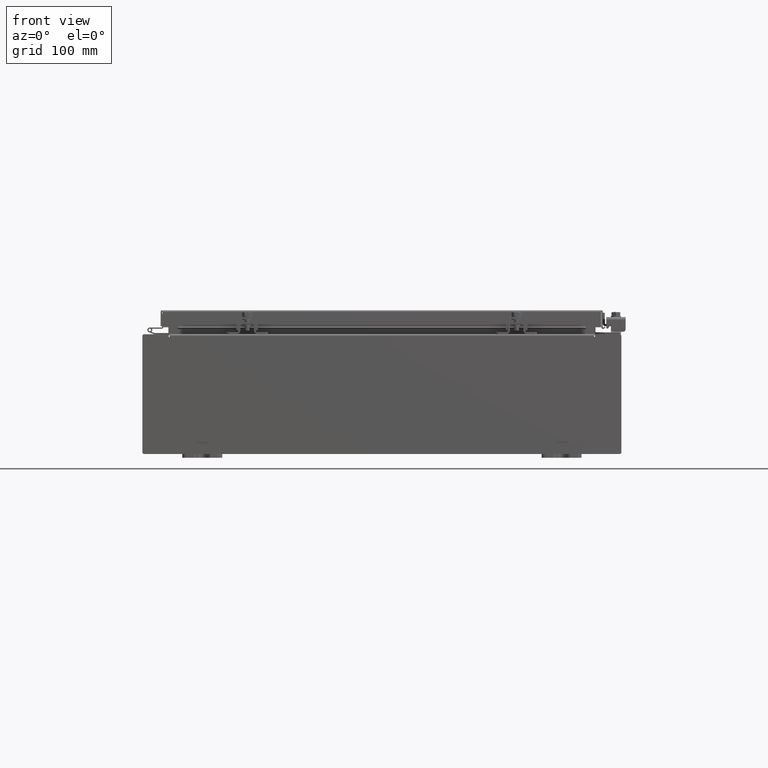
[diagram: clean part render]
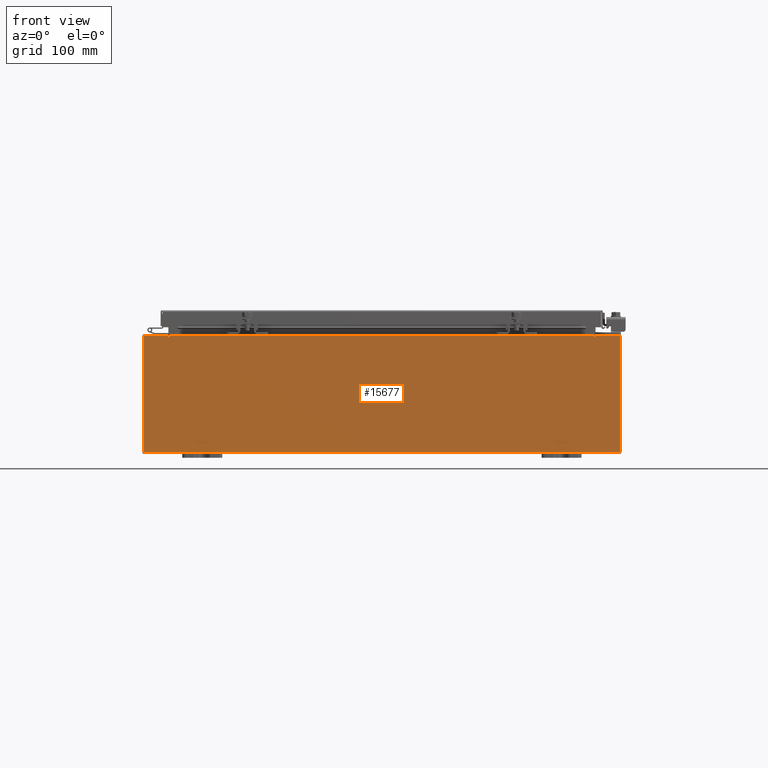
[diagram: same view with one face highlighted and labeled with its STEP entity id]
A machine part, front view. The second image highlights one B-rep face of the part: STEP entity #15677.
In plain terms, the highlighted planar face has unit normal (-0, 1, -0).
Its self-contained STEP definition (entity closure, byte-faithful):
#29 = CARTESIAN_POINT ( 'NONE',  ( 10.63720000000000400, 0.0000000000000000000, 2.874950000000000600 ) ) ;
#602 = VECTOR ( 'NONE', #28939, 39.37007874015748100 ) ;
#1124 = EDGE_CURVE ( 'NONE', #18301, #16206, #15288, .T. ) ;
#1139 = DIRECTION ( 'NONE',  ( 0.0000000000000000000, 0.0000000000000000000, -1.000000000000000000 ) ) ;
#1219 = VECTOR ( 'NONE', #9779, 39.37007874015748100 ) ;
#1515 = LINE ( 'NONE', #23925, #27332 ) ;
#1595 = VECTOR ( 'NONE', #18286, 39.37007874015748100 ) ;
#2313 = EDGE_LOOP ( 'NONE', ( #10382, #30376, #18110, #23856, #3010, #10315, #6244, #26457, #9360, #17579, #11001, #6003 ) ) ;
#2900 = CARTESIAN_POINT ( 'NONE',  ( -10.63720000000000400, -0.0000000000000000000, 2.874950000000000600 ) ) ;
#3010 = ORIENTED_EDGE ( 'NONE', *, *, #10154, .F. ) ;
#3093 = VECTOR ( 'NONE', #25733, 39.37007874015748100 ) ;
#3116 = DIRECTION ( 'NONE',  ( 1.000000000000000000, 0.0000000000000000000, 0.0000000000000000000 ) ) ;
#3207 = CARTESIAN_POINT ( 'NONE',  ( 11.92530000000000000, 0.0000000000000000000, 2.925300000000000500 ) ) ;
#3933 = DIRECTION ( 'NONE',  ( 0.0000000000000000000, 0.0000000000000000000, 1.000000000000000000 ) ) ;
#4177 = VERTEX_POINT ( 'NONE', #6949 ) ;
#4258 = EDGE_CURVE ( 'NONE', #24032, #18301, #13551, .T. ) ;
#4469 = EDGE_CURVE ( 'NONE', #12770, #20144, #20578, .T. ) ;
#4502 = CARTESIAN_POINT ( 'NONE',  ( 10.67454999999987700, -0.0000000000000000000, -4.633366117301834200E-013 ) ) ;
#4799 = DIRECTION ( 'NONE',  ( 0.0000000000000000000, 0.0000000000000000000, 1.000000000000000000 ) ) ;
#4849 = VERTEX_POINT ( 'NONE', #7798 ) ;
#5315 = DIRECTION ( 'NONE',  ( 0.0000000000000000000, 0.0000000000000000000, -1.000000000000000000 ) ) ;
#5421 = AXIS2_PLACEMENT_3D ( 'NONE', #31133, #16142, #1139 ) ;
#5603 = CARTESIAN_POINT ( 'NONE',  ( -11.92530000000000000, 0.0000000000000000000, 2.925300000000000500 ) ) ;
#5841 = AXIS2_PLACEMENT_3D ( 'NONE', #28997, #9076, #26569 ) ;
#6003 = ORIENTED_EDGE ( 'NONE', *, *, #9909, .T. ) ;
#6037 = CARTESIAN_POINT ( 'NONE',  ( -10.67455000000000200, 0.0000000000000000000, 2.925300000000000500 ) ) ;
#6244 = ORIENTED_EDGE ( 'NONE', *, *, #18528, .F. ) ;
#6882 = VECTOR ( 'NONE', #3116, 39.37007874015748100 ) ;
#6949 = CARTESIAN_POINT ( 'NONE',  ( 10.63720000000000400, 0.0000000000000000000, 2.912300000000000600 ) ) ;
#7048 = CARTESIAN_POINT ( 'NONE',  ( -11.92530000000000000, 0.0000000000000000000, 2.925300000000000500 ) ) ;
#7085 = LINE ( 'NONE', #12403, #1219 ) ;
#7798 = CARTESIAN_POINT ( 'NONE',  ( 10.67455000000000200, 0.0000000000000000000, 2.874950000000000600 ) ) ;
#7840 = EDGE_CURVE ( 'NONE', #16206, #12770, #22330, .T. ) ;
#9076 = DIRECTION ( 'NONE',  ( 0.0000000000000000000, -1.000000000000000000, 0.0000000000000000000 ) ) ;
#9360 = ORIENTED_EDGE ( 'NONE', *, *, #1124, .T. ) ;
#9365 = CARTESIAN_POINT ( 'NONE',  ( 11.92530000000000000, 0.0000000000000000000, -2.925299999999999600 ) ) ;
#9396 = FACE_OUTER_BOUND ( 'NONE', #2313, .T. ) ;
#9573 = DIRECTION ( 'NONE',  ( 1.000000000000000000, 0.0000000000000000000, 0.0000000000000000000 ) ) ;
#9779 = DIRECTION ( 'NONE',  ( 0.0000000000000000000, 0.0000000000000000000, -1.000000000000000000 ) ) ;
#9909 = EDGE_CURVE ( 'NONE', #20144, #22374, #14429, .T. ) ;
#10154 = EDGE_CURVE ( 'NONE', #22205, #4177, #1515, .T. ) ;
#10315 = ORIENTED_EDGE ( 'NONE', *, *, #15176, .F. ) ;
#10382 = ORIENTED_EDGE ( 'NONE', *, *, #19165, .F. ) ;
#10542 = VERTEX_POINT ( 'NONE', #2900 ) ;
#10772 = LINE ( 'NONE', #14755, #16658 ) ;
#11001 = ORIENTED_EDGE ( 'NONE', *, *, #4469, .T. ) ;
#11904 = AXIS2_PLACEMENT_3D ( 'NONE', #29047, #14050, #31581 ) ;
#12394 = CARTESIAN_POINT ( 'NONE',  ( -11.92530000000000000, 0.0000000000000000000, -2.925299999999999600 ) ) ;
#12403 = CARTESIAN_POINT ( 'NONE',  ( -10.63720000000000400, -0.0000000000000000000, 0.0000000000000000000 ) ) ;
#12770 = VERTEX_POINT ( 'NONE', #12394 ) ;
#13551 = LINE ( 'NONE', #5603, #6882 ) ;
#13939 = VECTOR ( 'NONE', #19516, 39.37007874015748100 ) ;
#14050 = DIRECTION ( 'NONE',  ( -0.0000000000000000000, 1.000000000000000000, -0.0000000000000000000 ) ) ;
#14429 = LINE ( 'NONE', #7048, #26954 ) ;
#14755 = CARTESIAN_POINT ( 'NONE',  ( -10.67455000000000200, -0.0000000000000000000, 0.0000000000000000000 ) ) ;
#15176 = EDGE_CURVE ( 'NONE', #4849, #22205, #22708, .T. ) ;
#15280 = CARTESIAN_POINT ( 'NONE',  ( 10.67455000000000200, 0.0000000000000000000, 2.925300000000000500 ) ) ;
#15288 = LINE ( 'NONE', #30875, #27798 ) ;
#15677 = ADVANCED_FACE ( 'NONE', ( #9396 ), #24038, .F. ) ;
#16142 = DIRECTION ( 'NONE',  ( -0.0000000000000000000, 1.000000000000000000, -0.0000000000000000000 ) ) ;
#16206 = VERTEX_POINT ( 'NONE', #9365 ) ;
#16433 = LINE ( 'NONE', #20606, #3093 ) ;
#16588 = CARTESIAN_POINT ( 'NONE',  ( -10.67455000000000200, 0.0000000000000000000, 2.874950000000000600 ) ) ;
#16658 = VECTOR ( 'NONE', #4799, 39.37007874015748100 ) ;
#17579 = ORIENTED_EDGE ( 'NONE', *, *, #7840, .T. ) ;
#18110 = ORIENTED_EDGE ( 'NONE', *, *, #25833, .F. ) ;
#18286 = DIRECTION ( 'NONE',  ( -1.000000000000000000, -0.0000000000000000000, -0.0000000000000000000 ) ) ;
#18301 = VERTEX_POINT ( 'NONE', #3207 ) ;
#18528 = EDGE_CURVE ( 'NONE', #24032, #4849, #20590, .T. ) ;
#19165 = EDGE_CURVE ( 'NONE', #21943, #22374, #10772, .T. ) ;
#19516 = DIRECTION ( 'NONE',  ( -4.340572780400004900E-014, 0.0000000000000000000, -1.000000000000000000 ) ) ;
#20144 = VERTEX_POINT ( 'NONE', #23891 ) ;
#20578 = LINE ( 'NONE', #31457, #602 ) ;
#20590 = LINE ( 'NONE', #4502, #13939 ) ;
#20606 = CARTESIAN_POINT ( 'NONE',  ( -10.63720000000000400, 1.024442997624098700E-016, 2.912300000000000600 ) ) ;
#20966 = VERTEX_POINT ( 'NONE', #22946 ) ;
#21943 = VERTEX_POINT ( 'NONE', #16588 ) ;
#22205 = VERTEX_POINT ( 'NONE', #29 ) ;
#22330 = LINE ( 'NONE', #28343, #1595 ) ;
#22374 = VERTEX_POINT ( 'NONE', #6037 ) ;
#22477 = EDGE_CURVE ( 'NONE', #10542, #21943, #27270, .T. ) ;
#22708 = CIRCLE ( 'NONE', #5421, 0.01867499999999949400 ) ;
#22946 = CARTESIAN_POINT ( 'NONE',  ( -10.63720000000000400, 1.024442997624098700E-016, 2.912300000000000600 ) ) ;
#23856 = ORIENTED_EDGE ( 'NONE', *, *, #29213, .T. ) ;
#23891 = CARTESIAN_POINT ( 'NONE',  ( -11.92530000000000000, 0.0000000000000000000, 2.925300000000000500 ) ) ;
#23925 = CARTESIAN_POINT ( 'NONE',  ( 10.63720000000000400, 0.0000000000000000000, 0.0000000000000000000 ) ) ;
#24032 = VERTEX_POINT ( 'NONE', #15280 ) ;
#24038 = PLANE ( 'NONE',  #5841 ) ;
#25733 = DIRECTION ( 'NONE',  ( 1.000000000000000000, 0.0000000000000000000, 0.0000000000000000000 ) ) ;
#25833 = EDGE_CURVE ( 'NONE', #20966, #10542, #7085, .T. ) ;
#26457 = ORIENTED_EDGE ( 'NONE', *, *, #4258, .T. ) ;
#26569 = DIRECTION ( 'NONE',  ( 0.0000000000000000000, -0.0000000000000000000, -1.000000000000000000 ) ) ;
#26954 = VECTOR ( 'NONE', #9573, 39.37007874015748100 ) ;
#27270 = CIRCLE ( 'NONE', #11904, 0.01867499999999949400 ) ;
#27332 = VECTOR ( 'NONE', #3933, 39.37007874015748100 ) ;
#27798 = VECTOR ( 'NONE', #5315, 39.37007874015748100 ) ;
#28343 = CARTESIAN_POINT ( 'NONE',  ( -11.92530000000000000, 0.0000000000000000000, -2.925299999999999600 ) ) ;
#28939 = DIRECTION ( 'NONE',  ( -0.0000000000000000000, -0.0000000000000000000, 1.000000000000000000 ) ) ;
#28997 = CARTESIAN_POINT ( 'NONE',  ( 0.0000000000000000000, 0.0000000000000000000, 0.0000000000000000000 ) ) ;
#29047 = CARTESIAN_POINT ( 'NONE',  ( -10.65587500000000200, 0.0000000000000000000, 2.874950000000000600 ) ) ;
#29213 = EDGE_CURVE ( 'NONE', #20966, #4177, #16433, .T. ) ;
#30376 = ORIENTED_EDGE ( 'NONE', *, *, #22477, .F. ) ;
#30875 = CARTESIAN_POINT ( 'NONE',  ( 11.92530000000000000, 0.0000000000000000000, 2.925300000000000500 ) ) ;
#31133 = CARTESIAN_POINT ( 'NONE',  ( 10.65587500000000200, 0.0000000000000000000, 2.874950000000000600 ) ) ;
#31457 = CARTESIAN_POINT ( 'NONE',  ( -11.92530000000000000, 0.0000000000000000000, 2.925300000000000500 ) ) ;
#31581 = DIRECTION ( 'NONE',  ( 0.0000000000000000000, 0.0000000000000000000, -1.000000000000000000 ) ) ;